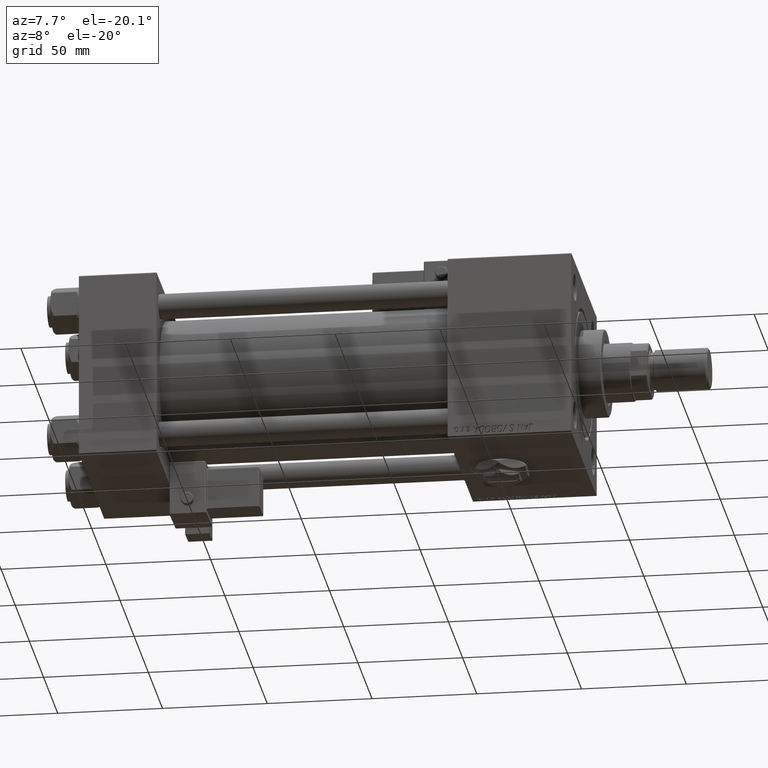
[diagram: clean part render]
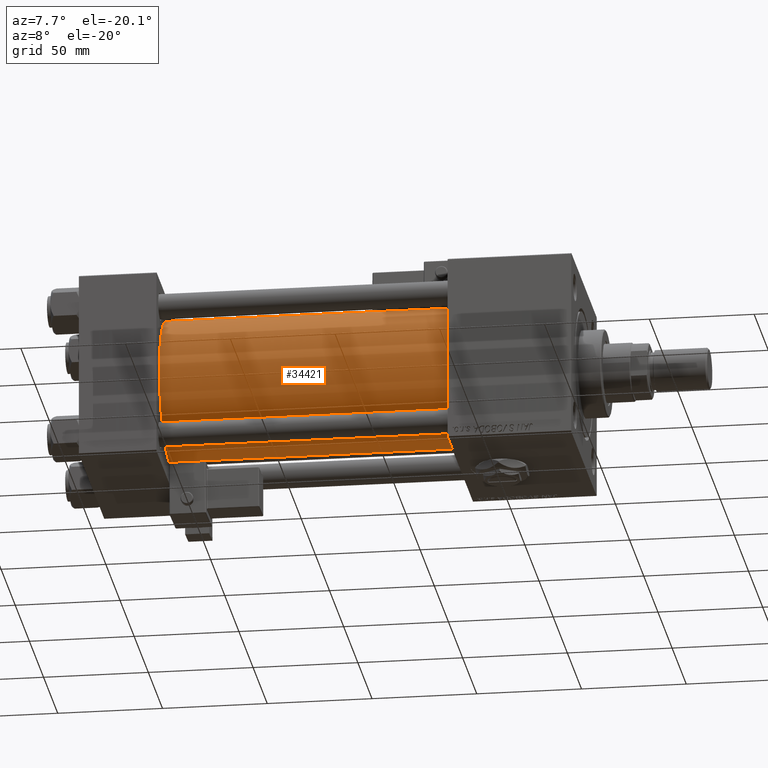
[diagram: same view with one face highlighted and labeled with its STEP entity id]
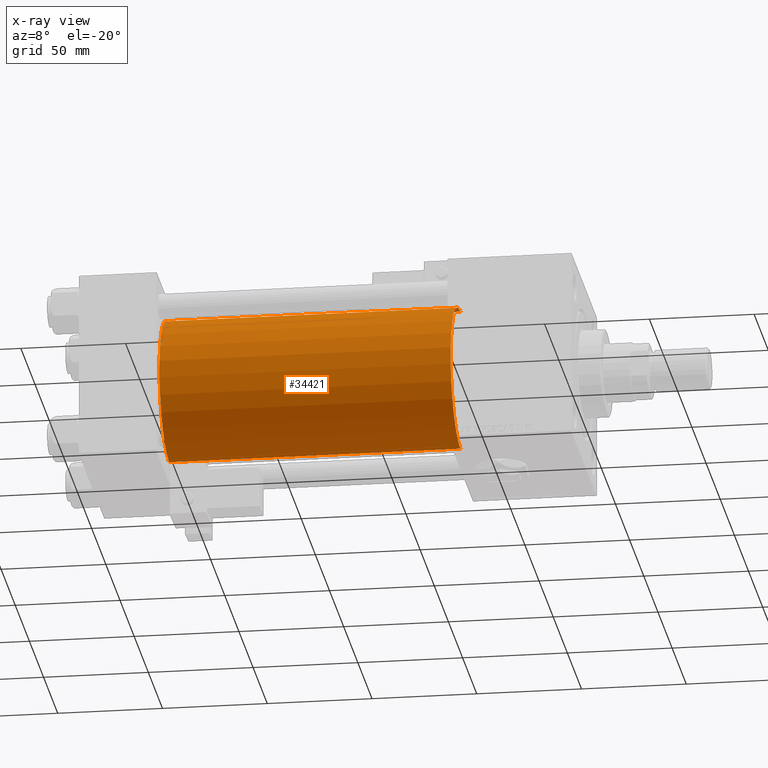
[diagram: x-ray of the same camera — body ghosted, the highlighted face saturated]
A machine part, auxiliary view. The second image highlights one B-rep face of the part: STEP entity #34421.
The next image is the same camera in x-ray: the body ghosted, the highlighted face saturated — about 0% of this face is hidden behind the body in this view.
In plain terms, the highlighted cylindrical surface (partial cylindrical patch) has radius 34.5 mm, axis along (-1, -0, -0).
Its self-contained STEP definition (entity closure, byte-faithful):
#482 = EDGE_LOOP ( 'NONE', ( #27689, #45432, #46840, #38466 ) ) ;
#3518 = CARTESIAN_POINT ( 'NONE',  ( 176.0000000000000284, -2.602085213965210642E-15, 0.000000000000000000 ) ) ;
#3833 = CIRCLE ( 'NONE', #5607, 34.50000000000000000 ) ;
#4245 = DIRECTION ( 'NONE',  ( 1.000000000000000000, -0.000000000000000000, 0.000000000000000000 ) ) ;
#5607 = AXIS2_PLACEMENT_3D ( 'NONE', #17486, #4245, #17215 ) ;
#6497 = DIRECTION ( 'NONE',  ( -1.000000000000000000, -0.000000000000000000, -0.000000000000000000 ) ) ;
#7940 = CARTESIAN_POINT ( 'NONE',  ( 176.0000000000000284, 1.622946243093158675E-15, -34.50000000000000000 ) ) ;
#8872 = VERTEX_POINT ( 'NONE', #41058 ) ;
#11528 = DIRECTION ( 'NONE',  ( 0.000000000000000000, 0.000000000000000000, -1.000000000000000000 ) ) ;
#11981 = CARTESIAN_POINT ( 'NONE',  ( 176.0000000000000284, 1.622946243093158675E-15, -34.50000000000000000 ) ) ;
#12918 = VERTEX_POINT ( 'NONE', #15314 ) ;
#15314 = CARTESIAN_POINT ( 'NONE',  ( 37.00000000000000711, 1.622946243093158675E-15, -34.50000000000000000 ) ) ;
#15696 = AXIS2_PLACEMENT_3D ( 'NONE', #45810, #38556, #18362 ) ;
#17215 = DIRECTION ( 'NONE',  ( 0.000000000000000000, 0.000000000000000000, 1.000000000000000000 ) ) ;
#17486 = CARTESIAN_POINT ( 'NONE',  ( 37.00000000000000711, -2.602085213965210642E-15, 0.000000000000000000 ) ) ;
#18362 = DIRECTION ( 'NONE',  ( 0.000000000000000000, 0.000000000000000000, 1.000000000000000000 ) ) ;
#18902 = CARTESIAN_POINT ( 'NONE',  ( 176.0000000000000284, -2.602085213965210642E-15, 34.50000000000000000 ) ) ;
#19732 = LINE ( 'NONE', #11981, #51629 ) ;
#21426 = CYLINDRICAL_SURFACE ( 'NONE', #15696, 34.50000000000000000 ) ;
#22303 = EDGE_CURVE ( 'NONE', #34658, #12918, #3833, .T. ) ;
#24704 = CIRCLE ( 'NONE', #51165, 34.50000000000000000 ) ;
#27689 = ORIENTED_EDGE ( 'NONE', *, *, #29620, .F. ) ;
#29620 = EDGE_CURVE ( 'NONE', #43379, #12918, #19732, .T. ) ;
#29799 = VECTOR ( 'NONE', #6497, 1000.000000000000000 ) ;
#33885 = DIRECTION ( 'NONE',  ( 1.000000000000000000, 0.000000000000000000, 0.000000000000000000 ) ) ;
#34421 = ADVANCED_FACE ( 'NONE', ( #39363 ), #21426, .T. ) ;
#34624 = EDGE_CURVE ( 'NONE', #8872, #34658, #48447, .T. ) ;
#34658 = VERTEX_POINT ( 'NONE', #40189 ) ;
#37148 = DIRECTION ( 'NONE',  ( -1.000000000000000000, -0.000000000000000000, -0.000000000000000000 ) ) ;
#38466 = ORIENTED_EDGE ( 'NONE', *, *, #22303, .T. ) ;
#38556 = DIRECTION ( 'NONE',  ( -1.000000000000000000, -0.000000000000000000, -0.000000000000000000 ) ) ;
#39363 = FACE_OUTER_BOUND ( 'NONE', #482, .T. ) ;
#39768 = EDGE_CURVE ( 'NONE', #8872, #43379, #24704, .T. ) ;
#40189 = CARTESIAN_POINT ( 'NONE',  ( 37.00000000000000711, -2.602085213965210642E-15, 34.50000000000000000 ) ) ;
#41058 = CARTESIAN_POINT ( 'NONE',  ( 176.0000000000000284, -2.602085213965210642E-15, 34.50000000000000000 ) ) ;
#43379 = VERTEX_POINT ( 'NONE', #7940 ) ;
#45432 = ORIENTED_EDGE ( 'NONE', *, *, #39768, .F. ) ;
#45810 = CARTESIAN_POINT ( 'NONE',  ( 176.0000000000000284, -2.602085213965210642E-15, 0.000000000000000000 ) ) ;
#46840 = ORIENTED_EDGE ( 'NONE', *, *, #34624, .T. ) ;
#48447 = LINE ( 'NONE', #18902, #29799 ) ;
#51165 = AXIS2_PLACEMENT_3D ( 'NONE', #3518, #33885, #11528 ) ;
#51629 = VECTOR ( 'NONE', #37148, 1000.000000000000000 ) ;